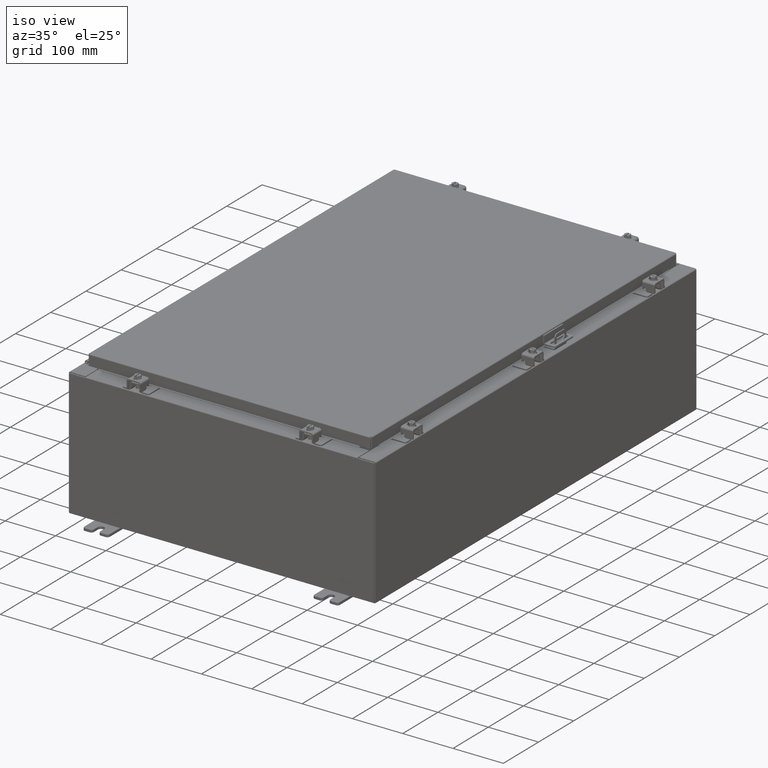
[diagram: clean part render]
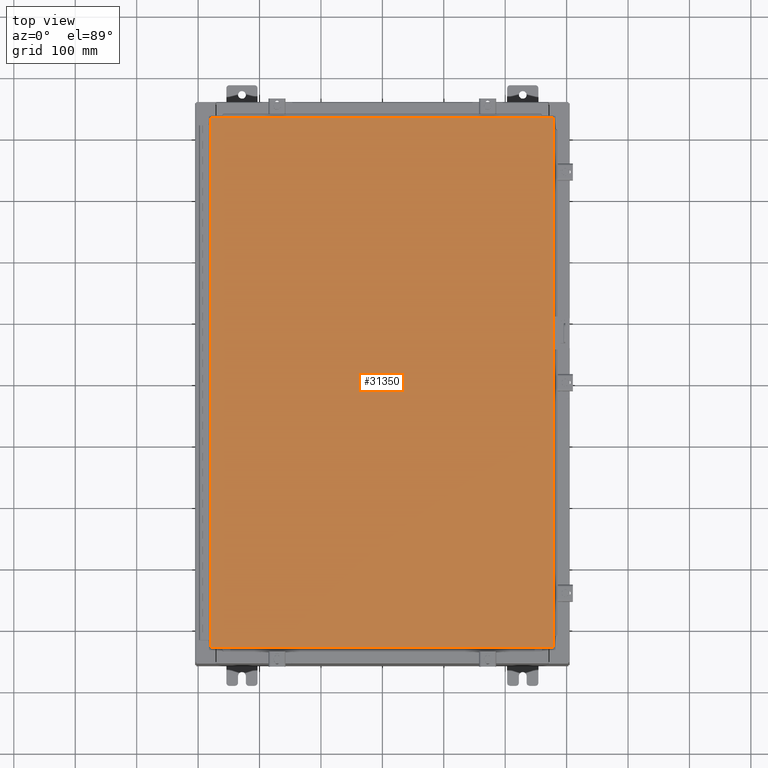
[diagram: tour spotlight — one face highlighted and labeled with its STEP entity id]
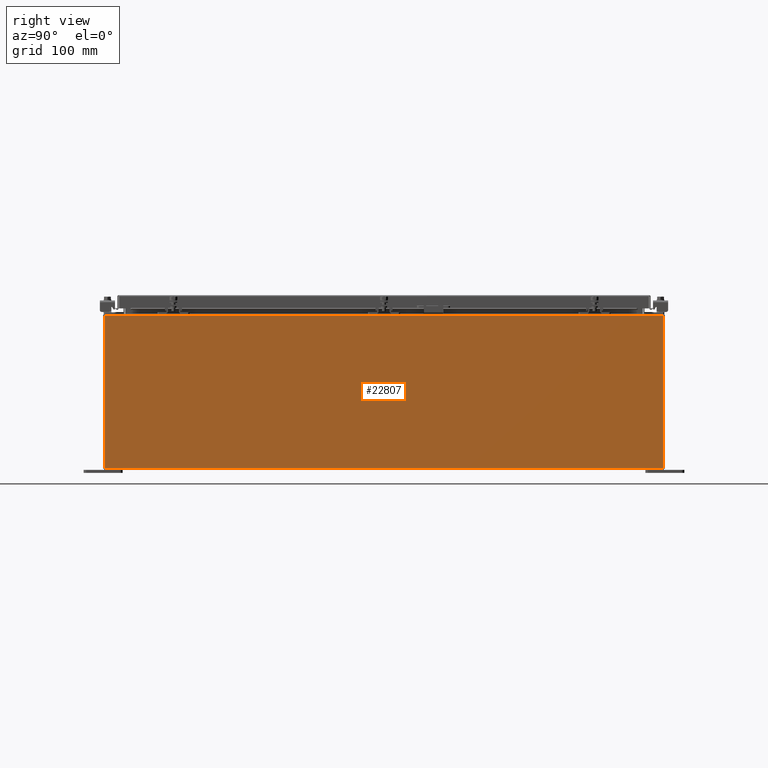
[diagram: tour spotlight — one face highlighted and labeled with its STEP entity id]
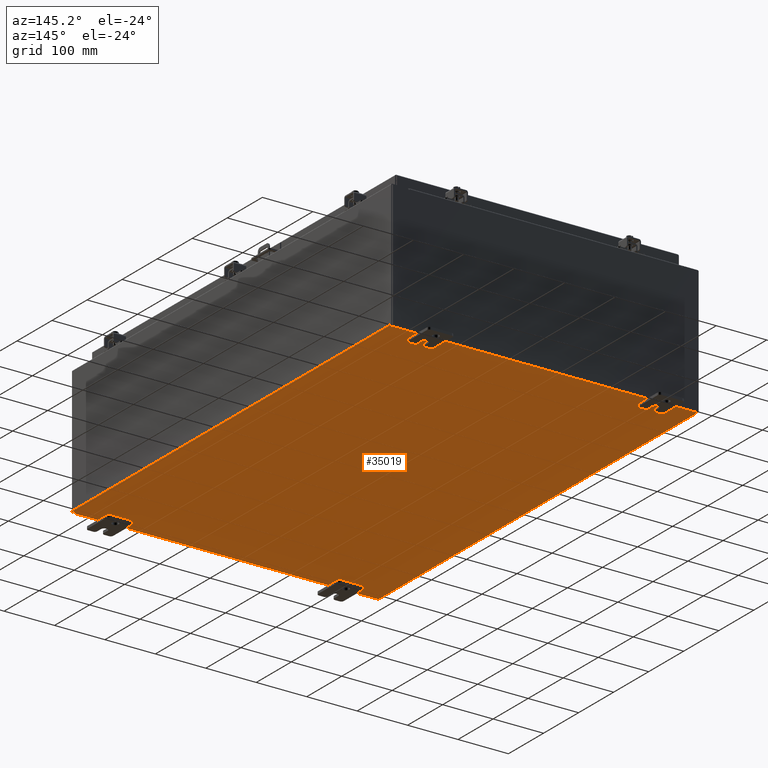
[diagram: tour spotlight — one face highlighted and labeled with its STEP entity id]
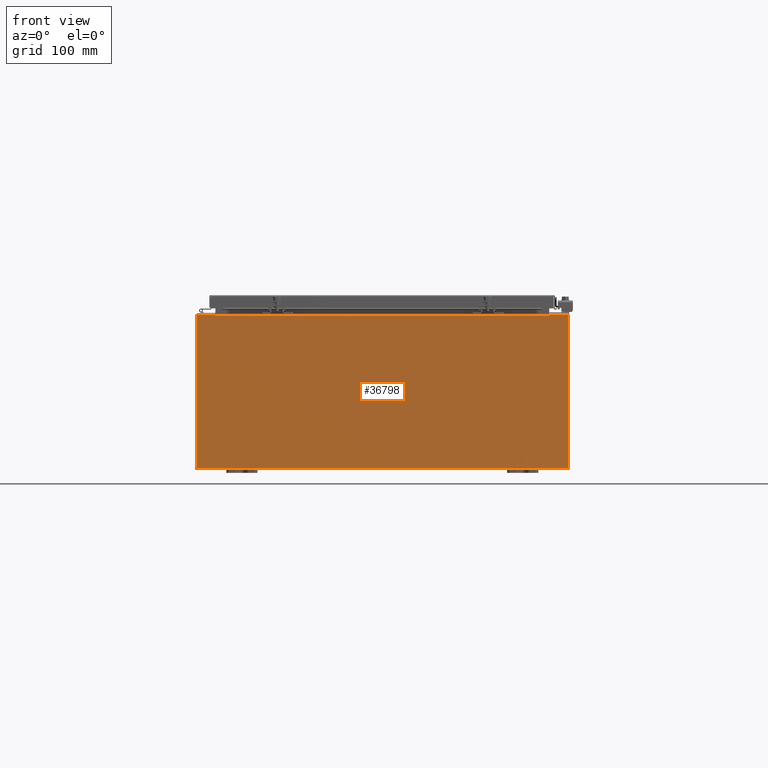
[diagram: tour spotlight — one face highlighted and labeled with its STEP entity id]
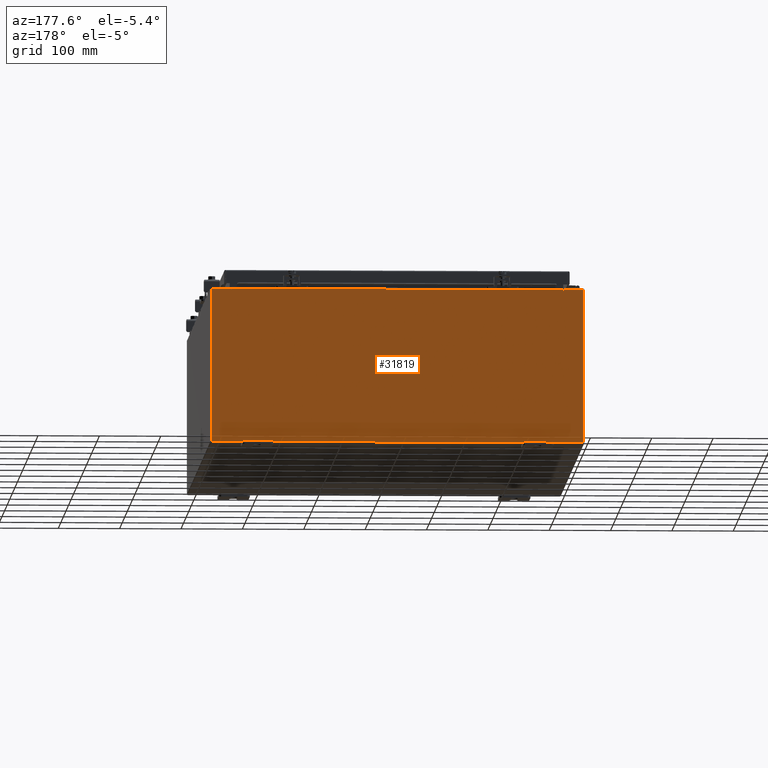
[diagram: tour spotlight — one face highlighted and labeled with its STEP entity id]
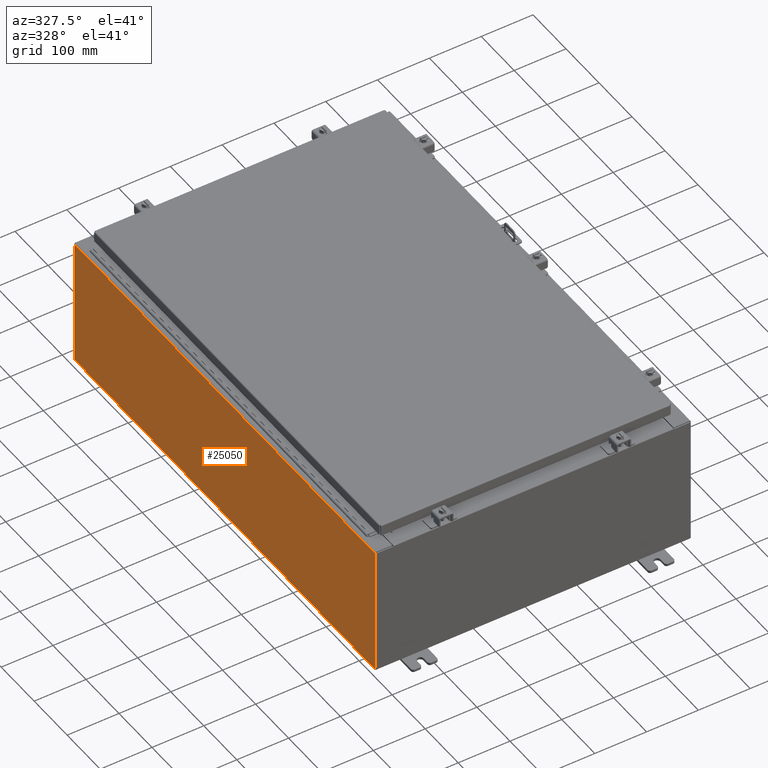
[diagram: tour spotlight — one face highlighted and labeled with its STEP entity id]
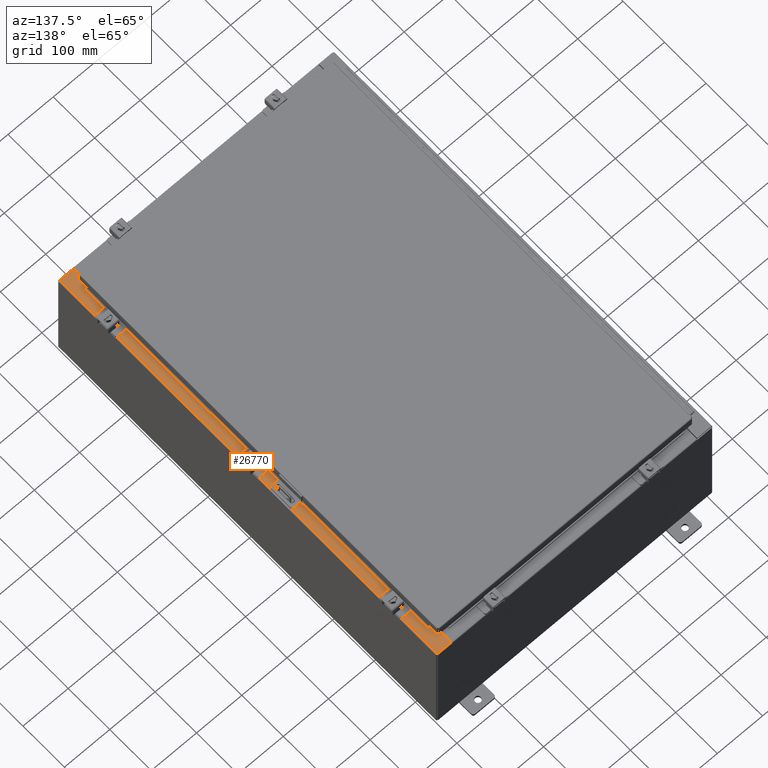
[diagram: tour spotlight — one face highlighted and labeled with its STEP entity id]
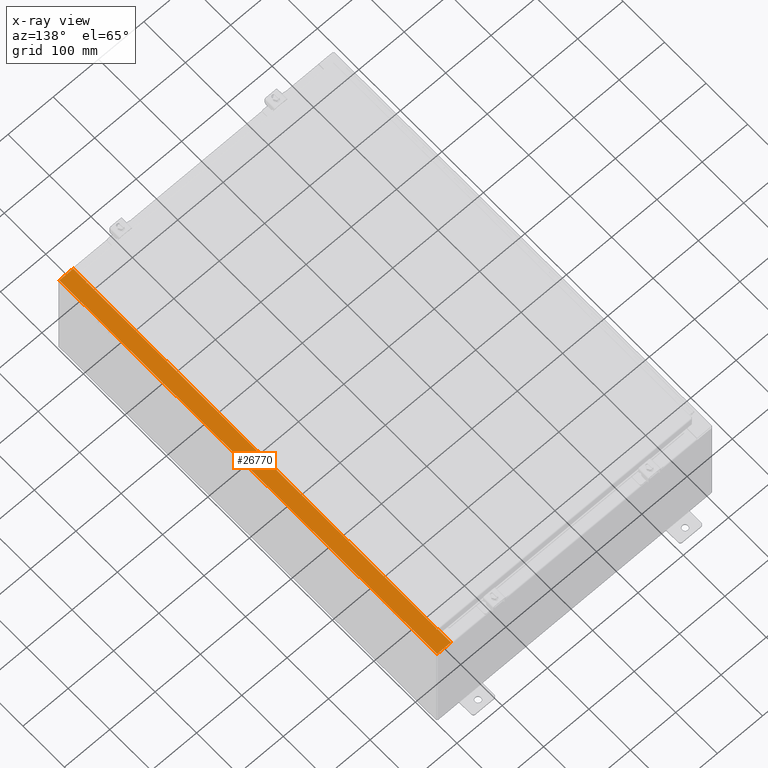
[diagram: x-ray of the same camera — body ghosted, this tour face saturated]
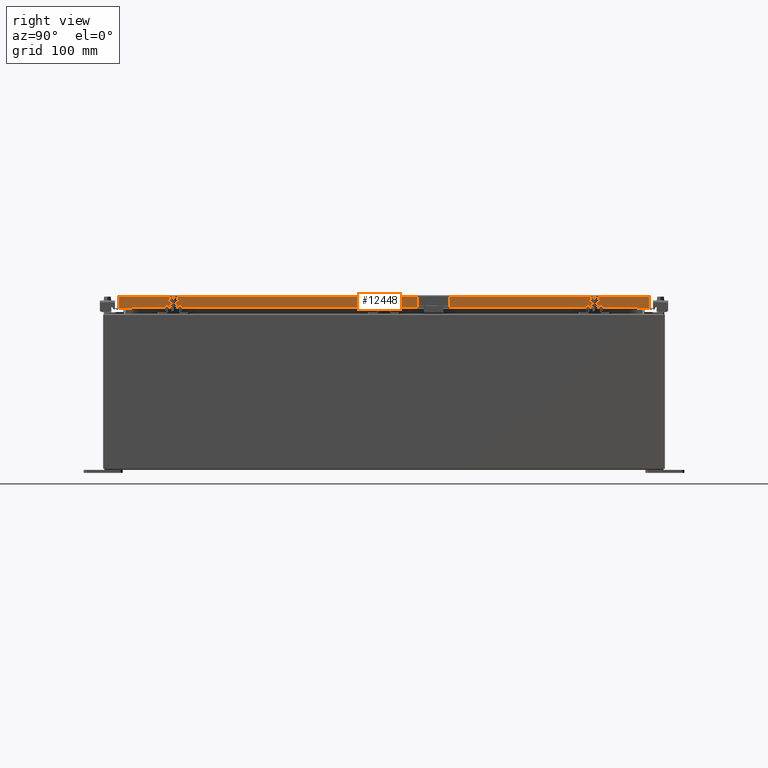
[diagram: tour spotlight — one face highlighted and labeled with its STEP entity id]
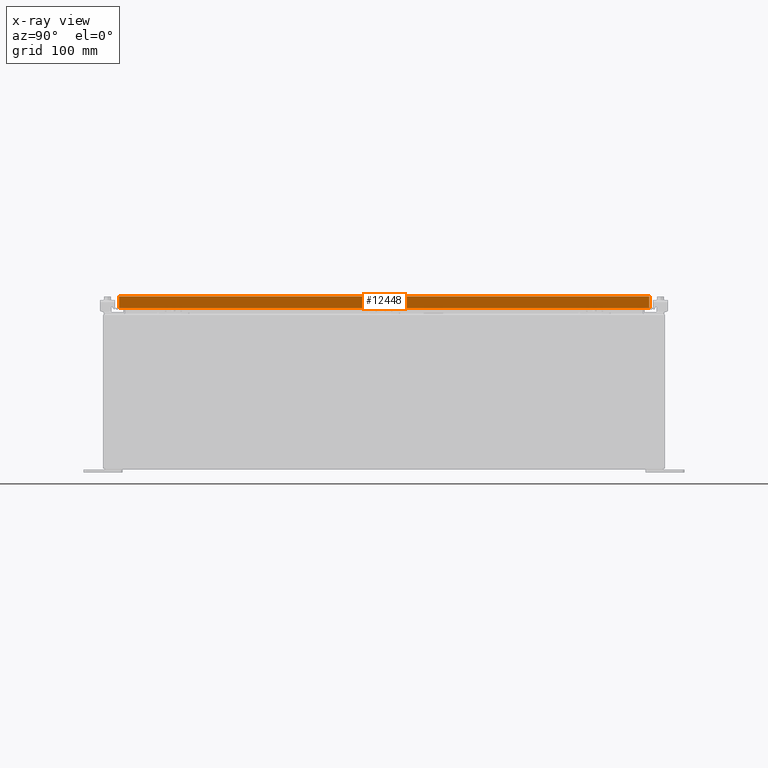
[diagram: x-ray of the same camera — body ghosted, this tour face saturated]
A machine part: a face-by-face anatomy tour. The part has 2184 B-rep faces; the first image is the clean iso view, then the 8 largest visible faces are spotlighted one at a time (largest first), each with its STEP entity span.

Face 1 — top view, entity #31350. In plain terms, the highlighted planar face has unit normal (0, 0, -1).
Definition (entity closure, byte-faithful):
#2125 = DIRECTION ( 'NONE',  ( 1.000000000000000000, -0.0000000000000000000, -0.0000000000000000000 ) ) ;
#5348 = FACE_OUTER_BOUND ( 'NONE', #9331, .T. ) ;
#7896 = VECTOR ( 'NONE', #33834, 39.37007874015748100 ) ;
#9331 = EDGE_LOOP ( 'NONE', ( #24828, #14204, #9991, #37618 ) ) ;
#9991 = ORIENTED_EDGE ( 'NONE', *, *, #40725, .T. ) ;
#10235 = EDGE_CURVE ( 'NONE', #32992, #31890, #15545, .T. ) ;
#10990 = CARTESIAN_POINT ( 'NONE',  ( 10.99029999999999600, -17.00629999999999200, -2.048885995248197400E-016 ) ) ;
#11563 = DIRECTION ( 'NONE',  ( 0.0000000000000000000, 0.0000000000000000000, -1.000000000000000000 ) ) ;
#13300 = EDGE_CURVE ( 'NONE', #32786, #31532, #32145, .T. ) ;
#14204 = ORIENTED_EDGE ( 'NONE', *, *, #10235, .T. ) ;
#14948 = CARTESIAN_POINT ( 'NONE',  ( 10.99029999999999800, 17.00630000000000700, -2.048885995248197400E-016 ) ) ;
#15157 = CARTESIAN_POINT ( 'NONE',  ( 10.99029999999999600, -17.00629999999999200, -2.048885995248197400E-016 ) ) ;
#15545 = LINE ( 'NONE', #10990, #7896 ) ;
#15807 = VECTOR ( 'NONE', #17704, 39.37007874015748100 ) ;
#16829 = VECTOR ( 'NONE', #32063, 39.37007874015748100 ) ;
#17217 = VECTOR ( 'NONE', #2125, 39.37007874015748100 ) ;
#17335 = CARTESIAN_POINT ( 'NONE',  ( -10.99030000000000500, 17.00630000000000700, -3.483106191921935600E-015 ) ) ;
#17704 = DIRECTION ( 'NONE',  ( 0.0000000000000000000, -1.000000000000000000, 0.0000000000000000000 ) ) ;
#21271 = CARTESIAN_POINT ( 'NONE',  ( 0.0000000000000000000, 0.0000000000000000000, 0.0000000000000000000 ) ) ;
#21977 = CARTESIAN_POINT ( 'NONE',  ( -10.99030000000000000, -17.00629999999999600, 8.878505979408856000E-016 ) ) ;
#24828 = ORIENTED_EDGE ( 'NONE', *, *, #41942, .T. ) ;
#25501 = LINE ( 'NONE', #38549, #16829 ) ;
#31123 = PLANE ( 'NONE',  #31891 ) ;
#31350 = ADVANCED_FACE ( 'NONE', ( #5348 ), #31123, .F. ) ;
#31532 = VERTEX_POINT ( 'NONE', #35823 ) ;
#31890 = VERTEX_POINT ( 'NONE', #14948 ) ;
#31891 = AXIS2_PLACEMENT_3D ( 'NONE', #21271, #11563, #34393 ) ;
#32063 = DIRECTION ( 'NONE',  ( -1.000000000000000000, -0.0000000000000000000, -0.0000000000000000000 ) ) ;
#32145 = LINE ( 'NONE', #37231, #15807 ) ;
#32786 = VERTEX_POINT ( 'NONE', #17335 ) ;
#32992 = VERTEX_POINT ( 'NONE', #15157 ) ;
#33576 = LINE ( 'NONE', #21977, #17217 ) ;
#33834 = DIRECTION ( 'NONE',  ( 0.0000000000000000000, 1.000000000000000000, 0.0000000000000000000 ) ) ;
#34393 = DIRECTION ( 'NONE',  ( -1.000000000000000000, 0.0000000000000000000, -0.0000000000000000000 ) ) ;
#35823 = CARTESIAN_POINT ( 'NONE',  ( -10.99030000000000000, -17.00629999999999600, 8.878505979408856000E-016 ) ) ;
#37231 = CARTESIAN_POINT ( 'NONE',  ( -10.99030000000000500, 17.00630000000000700, -3.483106191921935600E-015 ) ) ;
#37618 = ORIENTED_EDGE ( 'NONE', *, *, #13300, .T. ) ;
#38549 = CARTESIAN_POINT ( 'NONE',  ( 10.99029999999999800, 17.00630000000000700, -2.048885995248197400E-016 ) ) ;
#40725 = EDGE_CURVE ( 'NONE', #31890, #32786, #25501, .T. ) ;
#41942 = EDGE_CURVE ( 'NONE', #31532, #32992, #33576, .T. ) ;

Face 2 — right view, entity #22807. In plain terms, the highlighted planar face has unit normal (-1, 0, 0).
Definition (entity closure, byte-faithful):
#654 = LINE ( 'NONE', #41893, #33307 ) ;
#1593 = CARTESIAN_POINT ( 'NONE',  ( 12.00000000000000200, 0.0000000000000000000, -4.253780798634223500E-014 ) ) ;
#2128 = LINE ( 'NONE', #15480, #11856 ) ;
#2732 = LINE ( 'NONE', #38667, #37422 ) ;
#4439 = LINE ( 'NONE', #16037, #38050 ) ;
#4856 = DIRECTION ( 'NONE',  ( 3.523082860860887800E-015, 0.0000000000000000000, 1.000000000000000000 ) ) ;
#6528 = EDGE_CURVE ( 'NONE', #17922, #6799, #2732, .T. ) ;
#6799 = VERTEX_POINT ( 'NONE', #25943 ) ;
#7799 = EDGE_LOOP ( 'NONE', ( #9949, #12957, #21355, #32982 ) ) ;
#8478 = EDGE_CURVE ( 'NONE', #28688, #17922, #2128, .T. ) ;
#9748 = CARTESIAN_POINT ( 'NONE',  ( 12.00000000000003700, 17.92529999999999600, 9.837599999999993000 ) ) ;
#9949 = ORIENTED_EDGE ( 'NONE', *, *, #6528, .T. ) ;
#11496 = CARTESIAN_POINT ( 'NONE',  ( 12.00000000000000200, -17.92530000000000400, 0.01299999999999946500 ) ) ;
#11856 = VECTOR ( 'NONE', #15277, 39.37007874015748100 ) ;
#12957 = ORIENTED_EDGE ( 'NONE', *, *, #33149, .T. ) ;
#15277 = DIRECTION ( 'NONE',  ( 3.523082860860888200E-015, -2.201926788038055100E-016, 1.000000000000000000 ) ) ;
#15480 = CARTESIAN_POINT ( 'NONE',  ( 12.00000000000000200, 17.92529999999999600, -3.859078816098037700E-014 ) ) ;
#16037 = CARTESIAN_POINT ( 'NONE',  ( 12.00000000000000200, -17.92530000000000000, 0.01299999999999984700 ) ) ;
#17922 = VERTEX_POINT ( 'NONE', #9748 ) ;
#21138 = PLANE ( 'NONE',  #29109 ) ;
#21355 = ORIENTED_EDGE ( 'NONE', *, *, #22509, .F. ) ;
#22509 = EDGE_CURVE ( 'NONE', #28688, #25566, #4439, .T. ) ;
#22747 = DIRECTION ( 'NONE',  ( -2.147696684564447600E-031, -1.000000000000000000, -6.096072018129156600E-017 ) ) ;
#22807 = ADVANCED_FACE ( 'NONE', ( #28935 ), #21138, .F. ) ;
#24397 = DIRECTION ( 'NONE',  ( -1.000000000000000000, 0.0000000000000000000, 3.523082860860887800E-015 ) ) ;
#25566 = VERTEX_POINT ( 'NONE', #11496 ) ;
#25943 = CARTESIAN_POINT ( 'NONE',  ( 12.00000000000003600, -17.92530000000000000, 9.837600000000000100 ) ) ;
#28688 = VERTEX_POINT ( 'NONE', #35222 ) ;
#28900 = DIRECTION ( 'NONE',  ( -0.0000000000000000000, -1.000000000000000000, -0.0000000000000000000 ) ) ;
#28935 = FACE_OUTER_BOUND ( 'NONE', #7799, .T. ) ;
#29109 = AXIS2_PLACEMENT_3D ( 'NONE', #1593, #24397, #4856 ) ;
#32982 = ORIENTED_EDGE ( 'NONE', *, *, #8478, .T. ) ;
#33149 = EDGE_CURVE ( 'NONE', #6799, #25566, #654, .T. ) ;
#33307 = VECTOR ( 'NONE', #35447, 39.37007874015748100 ) ;
#35222 = CARTESIAN_POINT ( 'NONE',  ( 12.00000000000000200, 17.92529999999999600, 0.01300000000000203200 ) ) ;
#35447 = DIRECTION ( 'NONE',  ( -3.523082860860888200E-015, -2.201926788038054900E-016, -1.000000000000000000 ) ) ;
#37422 = VECTOR ( 'NONE', #28900, 39.37007874015748100 ) ;
#38050 = VECTOR ( 'NONE', #22747, 39.37007874015748100 ) ;
#38667 = CARTESIAN_POINT ( 'NONE',  ( 12.00000000000003700, 17.92529999999999600, 9.837599999999993000 ) ) ;
#41893 = CARTESIAN_POINT ( 'NONE',  ( 12.00000000000000200, -17.92530000000000400, -3.859078816098037700E-014 ) ) ;

Face 3 — auxiliary view, entity #35019. In plain terms, the highlighted planar face has unit normal (0, 0, -1).
Definition (entity closure, byte-faithful):
#1558 = EDGE_CURVE ( 'NONE', #40150, #8694, #37197, .T. ) ;
#3165 = DIRECTION ( 'NONE',  ( -1.000000000000000000, 0.0000000000000000000, -0.0000000000000000000 ) ) ;
#4150 = LINE ( 'NONE', #8594, #31197 ) ;
#4855 = EDGE_CURVE ( 'NONE', #40150, #42180, #25349, .T. ) ;
#7137 = CARTESIAN_POINT ( 'NONE',  ( -11.91230000000000000, -17.92530000000000400, -0.07469999999999994700 ) ) ;
#8594 = CARTESIAN_POINT ( 'NONE',  ( -12.00000000000000200, 17.92529999999999600, -0.07470000000000000300 ) ) ;
#8694 = VERTEX_POINT ( 'NONE', #34828 ) ;
#10432 = DIRECTION ( 'NONE',  ( 1.000000000000000000, 0.0000000000000000000, 0.0000000000000000000 ) ) ;
#12500 = EDGE_CURVE ( 'NONE', #19897, #8694, #4150, .T. ) ;
#13203 = EDGE_CURVE ( 'NONE', #19897, #42180, #28580, .T. ) ;
#14747 = ORIENTED_EDGE ( 'NONE', *, *, #13203, .T. ) ;
#14943 = DIRECTION ( 'NONE',  ( -0.0000000000000000000, 1.000000000000000000, -0.0000000000000000000 ) ) ;
#19441 = CARTESIAN_POINT ( 'NONE',  ( 0.0000000000000000000, 0.0000000000000000000, -0.07470000000000000300 ) ) ;
#19893 = VECTOR ( 'NONE', #14943, 39.37007874015748100 ) ;
#19897 = VERTEX_POINT ( 'NONE', #29110 ) ;
#19913 = VECTOR ( 'NONE', #39919, 39.37007874015748100 ) ;
#20453 = CARTESIAN_POINT ( 'NONE',  ( 11.91230000000000000, 17.92529999999999600, -0.07469999999999738000 ) ) ;
#20912 = EDGE_LOOP ( 'NONE', ( #36351, #31981, #34376, #14747 ) ) ;
#22475 = AXIS2_PLACEMENT_3D ( 'NONE', #19441, #25852, #3165 ) ;
#22731 = PLANE ( 'NONE',  #22475 ) ;
#24844 = DIRECTION ( 'NONE',  ( -1.000000000000000000, -0.0000000000000000000, -0.0000000000000000000 ) ) ;
#24849 = CARTESIAN_POINT ( 'NONE',  ( -12.00000000000000200, -17.92530000000000400, -0.07470000000000000300 ) ) ;
#25349 = LINE ( 'NONE', #24849, #36069 ) ;
#25852 = DIRECTION ( 'NONE',  ( 0.0000000000000000000, 0.0000000000000000000, -1.000000000000000000 ) ) ;
#28580 = LINE ( 'NONE', #20453, #19913 ) ;
#29110 = CARTESIAN_POINT ( 'NONE',  ( 11.91230000000000000, 17.92529999999999600, -0.07469999999999738000 ) ) ;
#30607 = FACE_OUTER_BOUND ( 'NONE', #20912, .T. ) ;
#31197 = VECTOR ( 'NONE', #24844, 39.37007874015748100 ) ;
#31981 = ORIENTED_EDGE ( 'NONE', *, *, #1558, .T. ) ;
#34376 = ORIENTED_EDGE ( 'NONE', *, *, #12500, .F. ) ;
#34828 = CARTESIAN_POINT ( 'NONE',  ( -11.91230000000000000, 17.92529999999999600, -0.07470000000000000300 ) ) ;
#35019 = ADVANCED_FACE ( 'NONE', ( #30607 ), #22731, .T. ) ;
#35479 = CARTESIAN_POINT ( 'NONE',  ( -11.91230000000000000, -17.92530000000000400, -0.07469999999999994700 ) ) ;
#36069 = VECTOR ( 'NONE', #10432, 39.37007874015748100 ) ;
#36351 = ORIENTED_EDGE ( 'NONE', *, *, #4855, .F. ) ;
#37197 = LINE ( 'NONE', #7137, #19893 ) ;
#39565 = CARTESIAN_POINT ( 'NONE',  ( 11.91229999999999100, -17.92530000000000400, -0.07470000000000000300 ) ) ;
#39919 = DIRECTION ( 'NONE',  ( -0.0000000000000000000, -1.000000000000000000, -8.208677865577646300E-017 ) ) ;
#40150 = VERTEX_POINT ( 'NONE', #35479 ) ;
#42180 = VERTEX_POINT ( 'NONE', #39565 ) ;

Face 4 — front view, entity #36798. In plain terms, the highlighted planar face has unit normal (-0, 1, -0).
Definition (entity closure, byte-faithful):
#31 = VERTEX_POINT ( 'NONE', #20897 ) ;
#241 = ORIENTED_EDGE ( 'NONE', *, *, #11708, .T. ) ;
#438 = VECTOR ( 'NONE', #1312, 39.37007874015748100 ) ;
#1312 = DIRECTION ( 'NONE',  ( 1.000000000000000000, 0.0000000000000000000, 0.0000000000000000000 ) ) ;
#2690 = VECTOR ( 'NONE', #22340, 39.37007874015748100 ) ;
#3538 = LINE ( 'NONE', #13026, #37191 ) ;
#3857 = CIRCLE ( 'NONE', #23837, 0.01867499999999949400 ) ;
#3989 = LINE ( 'NONE', #39037, #19298 ) ;
#4312 = VERTEX_POINT ( 'NONE', #11106 ) ;
#4575 = CARTESIAN_POINT ( 'NONE',  ( -11.92530000000000000, 0.0000000000000000000, 4.925300000000000000 ) ) ;
#5324 = DIRECTION ( 'NONE',  ( 0.0000000000000000000, -1.000000000000000000, 0.0000000000000000000 ) ) ;
#5406 = CARTESIAN_POINT ( 'NONE',  ( -10.65587500000000200, 0.0000000000000000000, 4.874950000000000100 ) ) ;
#5574 = ORIENTED_EDGE ( 'NONE', *, *, #17865, .F. ) ;
#5828 = CARTESIAN_POINT ( 'NONE',  ( -11.92530000000000000, 0.0000000000000000000, 4.925300000000000000 ) ) ;
#6047 = VERTEX_POINT ( 'NONE', #22291 ) ;
#6675 = DIRECTION ( 'NONE',  ( 0.0000000000000000000, 0.0000000000000000000, 1.000000000000000000 ) ) ;
#6769 = LINE ( 'NONE', #7828, #32816 ) ;
#6930 = CARTESIAN_POINT ( 'NONE',  ( -10.67455000000000200, 0.0000000000000000000, 4.874950000000000100 ) ) ;
#7097 = LINE ( 'NONE', #18591, #23425 ) ;
#7828 = CARTESIAN_POINT ( 'NONE',  ( -11.92530000000000000, 0.0000000000000000000, -4.925300000000000000 ) ) ;
#8461 = CARTESIAN_POINT ( 'NONE',  ( 0.0000000000000000000, 0.0000000000000000000, 0.0000000000000000000 ) ) ;
#8693 = DIRECTION ( 'NONE',  ( 0.0000000000000000000, 0.0000000000000000000, -1.000000000000000000 ) ) ;
#8929 = CIRCLE ( 'NONE', #31029, 0.01867499999999949400 ) ;
#9295 = VERTEX_POINT ( 'NONE', #36722 ) ;
#10354 = VECTOR ( 'NONE', #12704, 39.37007874015748100 ) ;
#10420 = ORIENTED_EDGE ( 'NONE', *, *, #35068, .T. ) ;
#11094 = DIRECTION ( 'NONE',  ( -1.000000000000000000, -0.0000000000000000000, -0.0000000000000000000 ) ) ;
#11106 = CARTESIAN_POINT ( 'NONE',  ( 10.63720000000000400, 0.0000000000000000000, 4.874950000000000100 ) ) ;
#11399 = EDGE_CURVE ( 'NONE', #4312, #28782, #36382, .T. ) ;
#11596 = CARTESIAN_POINT ( 'NONE',  ( -11.92530000000000000, 0.0000000000000000000, 4.925300000000000000 ) ) ;
#11708 = EDGE_CURVE ( 'NONE', #28384, #29901, #6769, .T. ) ;
#11781 = PLANE ( 'NONE',  #34255 ) ;
#11854 = CARTESIAN_POINT ( 'NONE',  ( -10.63720000000000400, -7.171100983368691200E-016, 4.912300000000000100 ) ) ;
#12704 = DIRECTION ( 'NONE',  ( 0.0000000000000000000, 0.0000000000000000000, 1.000000000000000000 ) ) ;
#13026 = CARTESIAN_POINT ( 'NONE',  ( -11.92530000000000000, 0.0000000000000000000, 4.925300000000000000 ) ) ;
#15048 = EDGE_CURVE ( 'NONE', #16559, #9295, #3989, .T. ) ;
#15316 = DIRECTION ( 'NONE',  ( 0.0000000000000000000, 0.0000000000000000000, -1.000000000000000000 ) ) ;
#15487 = ORIENTED_EDGE ( 'NONE', *, *, #26224, .T. ) ;
#15643 = CARTESIAN_POINT ( 'NONE',  ( 10.65587500000000200, 0.0000000000000000000, 4.874950000000000100 ) ) ;
#16039 = DIRECTION ( 'NONE',  ( -4.340572780400004900E-014, 0.0000000000000000000, -1.000000000000000000 ) ) ;
#16559 = VERTEX_POINT ( 'NONE', #11854 ) ;
#17865 = EDGE_CURVE ( 'NONE', #31, #34676, #36781, .T. ) ;
#18139 = DIRECTION ( 'NONE',  ( -0.0000000000000000000, -0.0000000000000000000, 1.000000000000000000 ) ) ;
#18168 = ORIENTED_EDGE ( 'NONE', *, *, #32157, .F. ) ;
#18591 = CARTESIAN_POINT ( 'NONE',  ( 11.92530000000000000, 0.0000000000000000000, 4.925300000000000000 ) ) ;
#18815 = VERTEX_POINT ( 'NONE', #6930 ) ;
#18937 = DIRECTION ( 'NONE',  ( 0.0000000000000000000, 0.0000000000000000000, -1.000000000000000000 ) ) ;
#19096 = VECTOR ( 'NONE', #6675, 39.37007874015748100 ) ;
#19298 = VECTOR ( 'NONE', #29306, 39.37007874015748100 ) ;
#19578 = EDGE_CURVE ( 'NONE', #31, #23697, #26459, .T. ) ;
#20081 = LINE ( 'NONE', #41780, #2690 ) ;
#20199 = ORIENTED_EDGE ( 'NONE', *, *, #32625, .T. ) ;
#20897 = CARTESIAN_POINT ( 'NONE',  ( 10.67455000000000200, 0.0000000000000000000, 4.925300000000000000 ) ) ;
#21212 = EDGE_CURVE ( 'NONE', #9295, #18815, #3857, .T. ) ;
#21295 = VERTEX_POINT ( 'NONE', #5828 ) ;
#22291 = CARTESIAN_POINT ( 'NONE',  ( -10.67455000000000200, 0.0000000000000000000, 4.925300000000000000 ) ) ;
#22340 = DIRECTION ( 'NONE',  ( 1.000000000000000000, 0.0000000000000000000, 0.0000000000000000000 ) ) ;
#23403 = CARTESIAN_POINT ( 'NONE',  ( -11.92530000000000000, 0.0000000000000000000, -4.925300000000000000 ) ) ;
#23425 = VECTOR ( 'NONE', #15316, 39.37007874015748100 ) ;
#23648 = EDGE_CURVE ( 'NONE', #34676, #4312, #8929, .T. ) ;
#23697 = VERTEX_POINT ( 'NONE', #25640 ) ;
#23837 = AXIS2_PLACEMENT_3D ( 'NONE', #5406, #28261, #8693 ) ;
#25201 = ORIENTED_EDGE ( 'NONE', *, *, #19578, .T. ) ;
#25574 = LINE ( 'NONE', #11596, #40346 ) ;
#25640 = CARTESIAN_POINT ( 'NONE',  ( 11.92530000000000000, 0.0000000000000000000, 4.925300000000000000 ) ) ;
#26224 = EDGE_CURVE ( 'NONE', #29901, #21295, #25574, .T. ) ;
#26459 = LINE ( 'NONE', #4575, #438 ) ;
#27473 = CARTESIAN_POINT ( 'NONE',  ( 10.67455000000000200, 0.0000000000000000000, 4.874950000000000100 ) ) ;
#27782 = LINE ( 'NONE', #39115, #19096 ) ;
#28126 = VECTOR ( 'NONE', #16039, 39.37007874015748100 ) ;
#28174 = DIRECTION ( 'NONE',  ( 0.0000000000000000000, -0.0000000000000000000, -1.000000000000000000 ) ) ;
#28261 = DIRECTION ( 'NONE',  ( -0.0000000000000000000, 1.000000000000000000, -0.0000000000000000000 ) ) ;
#28384 = VERTEX_POINT ( 'NONE', #30255 ) ;
#28782 = VERTEX_POINT ( 'NONE', #41955 ) ;
#29023 = CARTESIAN_POINT ( 'NONE',  ( 10.67454999999979000, -0.0000000000000000000, -4.633366117301795800E-013 ) ) ;
#29306 = DIRECTION ( 'NONE',  ( 0.0000000000000000000, 0.0000000000000000000, -1.000000000000000000 ) ) ;
#29901 = VERTEX_POINT ( 'NONE', #23403 ) ;
#30255 = CARTESIAN_POINT ( 'NONE',  ( 11.92530000000000000, 0.0000000000000000000, -4.925300000000000000 ) ) ;
#31029 = AXIS2_PLACEMENT_3D ( 'NONE', #15643, #38407, #18937 ) ;
#32157 = EDGE_CURVE ( 'NONE', #18815, #6047, #27782, .T. ) ;
#32405 = ORIENTED_EDGE ( 'NONE', *, *, #23648, .F. ) ;
#32625 = EDGE_CURVE ( 'NONE', #16559, #28782, #20081, .T. ) ;
#32816 = VECTOR ( 'NONE', #11094, 39.37007874015748100 ) ;
#34255 = AXIS2_PLACEMENT_3D ( 'NONE', #8461, #5324, #28174 ) ;
#34676 = VERTEX_POINT ( 'NONE', #27473 ) ;
#34970 = ORIENTED_EDGE ( 'NONE', *, *, #41247, .T. ) ;
#35068 = EDGE_CURVE ( 'NONE', #21295, #6047, #3538, .T. ) ;
#35977 = DIRECTION ( 'NONE',  ( 1.000000000000000000, 0.0000000000000000000, 0.0000000000000000000 ) ) ;
#36382 = LINE ( 'NONE', #38731, #10354 ) ;
#36722 = CARTESIAN_POINT ( 'NONE',  ( -10.63720000000000400, -0.0000000000000000000, 4.874950000000000100 ) ) ;
#36781 = LINE ( 'NONE', #29023, #28126 ) ;
#36798 = ADVANCED_FACE ( 'NONE', ( #38972 ), #11781, .F. ) ;
#37191 = VECTOR ( 'NONE', #35977, 39.37007874015748100 ) ;
#37493 = ORIENTED_EDGE ( 'NONE', *, *, #11399, .F. ) ;
#38407 = DIRECTION ( 'NONE',  ( -0.0000000000000000000, 1.000000000000000000, -0.0000000000000000000 ) ) ;
#38731 = CARTESIAN_POINT ( 'NONE',  ( 10.63720000000000400, 0.0000000000000000000, 0.0000000000000000000 ) ) ;
#38972 = FACE_OUTER_BOUND ( 'NONE', #39467, .T. ) ;
#39037 = CARTESIAN_POINT ( 'NONE',  ( -10.63720000000000400, -0.0000000000000000000, 0.0000000000000000000 ) ) ;
#39115 = CARTESIAN_POINT ( 'NONE',  ( -10.67455000000000200, -0.0000000000000000000, 0.0000000000000000000 ) ) ;
#39467 = EDGE_LOOP ( 'NONE', ( #18168, #42071, #41518, #20199, #37493, #32405, #5574, #25201, #34970, #241, #15487, #10420 ) ) ;
#40346 = VECTOR ( 'NONE', #18139, 39.37007874015748100 ) ;
#41247 = EDGE_CURVE ( 'NONE', #23697, #28384, #7097, .T. ) ;
#41518 = ORIENTED_EDGE ( 'NONE', *, *, #15048, .F. ) ;
#41780 = CARTESIAN_POINT ( 'NONE',  ( -10.63720000000000400, -7.171100983368691200E-016, 4.912300000000000100 ) ) ;
#41955 = CARTESIAN_POINT ( 'NONE',  ( 10.63720000000000400, 0.0000000000000000000, 4.912300000000000100 ) ) ;
#42071 = ORIENTED_EDGE ( 'NONE', *, *, #21212, .F. ) ;

Face 5 — auxiliary view, entity #31819. In plain terms, the highlighted planar face has unit normal (0, -1, 0).
Definition (entity closure, byte-faithful):
#239 = LINE ( 'NONE', #2886, #25190 ) ;
#920 = ORIENTED_EDGE ( 'NONE', *, *, #4329, .F. ) ;
#1036 = VERTEX_POINT ( 'NONE', #19336 ) ;
#1319 = DIRECTION ( 'NONE',  ( -0.0000000000000000000, 1.000000000000000000, -0.0000000000000000000 ) ) ;
#1919 = ORIENTED_EDGE ( 'NONE', *, *, #12192, .F. ) ;
#2886 = CARTESIAN_POINT ( 'NONE',  ( 10.63720000000000400, 0.0000000000000000000, 0.0000000000000000000 ) ) ;
#2945 = ORIENTED_EDGE ( 'NONE', *, *, #10703, .F. ) ;
#3102 = LINE ( 'NONE', #29497, #36786 ) ;
#3220 = CARTESIAN_POINT ( 'NONE',  ( -11.92530000000000000, 0.0000000000000000000, 4.925300000000000000 ) ) ;
#3657 = CARTESIAN_POINT ( 'NONE',  ( -11.92530000000000000, 0.0000000000000000000, 4.925300000000000000 ) ) ;
#4329 = EDGE_CURVE ( 'NONE', #1036, #17253, #22864, .T. ) ;
#4432 = CARTESIAN_POINT ( 'NONE',  ( 10.63720000000000400, 0.0000000000000000000, 4.912300000000000100 ) ) ;
#4740 = DIRECTION ( 'NONE',  ( 1.000000000000000000, 0.0000000000000000000, 0.0000000000000000000 ) ) ;
#5374 = DIRECTION ( 'NONE',  ( 0.0000000000000000000, 0.0000000000000000000, -1.000000000000000000 ) ) ;
#5548 = ORIENTED_EDGE ( 'NONE', *, *, #26133, .T. ) ;
#5613 = AXIS2_PLACEMENT_3D ( 'NONE', #20842, #1319, #24117 ) ;
#5767 = EDGE_CURVE ( 'NONE', #22012, #40286, #35994, .T. ) ;
#6191 = DIRECTION ( 'NONE',  ( 0.0000000000000000000, 0.0000000000000000000, 1.000000000000000000 ) ) ;
#6210 = ORIENTED_EDGE ( 'NONE', *, *, #16113, .F. ) ;
#6793 = CARTESIAN_POINT ( 'NONE',  ( -10.67455000000000200, 0.0000000000000000000, 4.925300000000000000 ) ) ;
#6955 = LINE ( 'NONE', #3657, #39542 ) ;
#7969 = DIRECTION ( 'NONE',  ( 0.0000000000000000000, -0.0000000000000000000, -1.000000000000000000 ) ) ;
#8414 = CIRCLE ( 'NONE', #5613, 0.01867499999999949400 ) ;
#9005 = LINE ( 'NONE', #16807, #35081 ) ;
#9346 = EDGE_CURVE ( 'NONE', #36141, #22012, #6955, .T. ) ;
#9954 = VECTOR ( 'NONE', #16750, 39.37007874015748100 ) ;
#10343 = DIRECTION ( 'NONE',  ( 0.0000000000000000000, 0.0000000000000000000, 1.000000000000000000 ) ) ;
#10615 = CARTESIAN_POINT ( 'NONE',  ( -11.92530000000000000, 0.0000000000000000000, 4.925300000000000000 ) ) ;
#10703 = EDGE_CURVE ( 'NONE', #30753, #1036, #25202, .T. ) ;
#11027 = CARTESIAN_POINT ( 'NONE',  ( 11.92530000000000000, 0.0000000000000000000, -4.925300000000000000 ) ) ;
#12192 = EDGE_CURVE ( 'NONE', #35516, #40286, #32774, .T. ) ;
#12223 = DIRECTION ( 'NONE',  ( 0.0000000000000000000, 0.0000000000000000000, -1.000000000000000000 ) ) ;
#12914 = ORIENTED_EDGE ( 'NONE', *, *, #20030, .F. ) ;
#13254 = CARTESIAN_POINT ( 'NONE',  ( 10.67454999999979000, -0.0000000000000000000, -4.633366117301795800E-013 ) ) ;
#13591 = AXIS2_PLACEMENT_3D ( 'NONE', #21648, #20532, #5374 ) ;
#14392 = CARTESIAN_POINT ( 'NONE',  ( 0.0000000000000000000, 0.0000000000000000000, 0.0000000000000000000 ) ) ;
#14785 = ORIENTED_EDGE ( 'NONE', *, *, #5767, .T. ) ;
#15418 = CARTESIAN_POINT ( 'NONE',  ( -10.63720000000000400, -0.0000000000000000000, 4.874950000000000100 ) ) ;
#16113 = EDGE_CURVE ( 'NONE', #17253, #19559, #239, .T. ) ;
#16750 = DIRECTION ( 'NONE',  ( 1.000000000000000000, 0.0000000000000000000, 0.0000000000000000000 ) ) ;
#16807 = CARTESIAN_POINT ( 'NONE',  ( -10.63720000000000400, -0.0000000000000000000, 0.0000000000000000000 ) ) ;
#17253 = VERTEX_POINT ( 'NONE', #25188 ) ;
#17540 = VECTOR ( 'NONE', #36059, 39.37007874015748100 ) ;
#17904 = VECTOR ( 'NONE', #4740, 39.37007874015748100 ) ;
#18026 = CARTESIAN_POINT ( 'NONE',  ( -11.92530000000000000, 0.0000000000000000000, -4.925300000000000000 ) ) ;
#18162 = VECTOR ( 'NONE', #40751, 39.37007874015748100 ) ;
#19336 = CARTESIAN_POINT ( 'NONE',  ( 10.67455000000000200, 0.0000000000000000000, 4.874950000000000100 ) ) ;
#19559 = VERTEX_POINT ( 'NONE', #4432 ) ;
#20030 = EDGE_CURVE ( 'NONE', #25950, #35636, #9005, .T. ) ;
#20183 = CARTESIAN_POINT ( 'NONE',  ( -10.63720000000000400, -7.171100983368691200E-016, 4.912300000000000100 ) ) ;
#20428 = ORIENTED_EDGE ( 'NONE', *, *, #27080, .T. ) ;
#20532 = DIRECTION ( 'NONE',  ( -0.0000000000000000000, 1.000000000000000000, -0.0000000000000000000 ) ) ;
#20842 = CARTESIAN_POINT ( 'NONE',  ( -10.65587500000000200, 0.0000000000000000000, 4.874950000000000100 ) ) ;
#21511 = AXIS2_PLACEMENT_3D ( 'NONE', #14392, #27556, #7969 ) ;
#21648 = CARTESIAN_POINT ( 'NONE',  ( 10.65587500000000200, 0.0000000000000000000, 4.874950000000000100 ) ) ;
#22012 = VERTEX_POINT ( 'NONE', #3220 ) ;
#22330 = ORIENTED_EDGE ( 'NONE', *, *, #25690, .T. ) ;
#22864 = CIRCLE ( 'NONE', #13591, 0.01867499999999949400 ) ;
#22926 = VERTEX_POINT ( 'NONE', #38020 ) ;
#24117 = DIRECTION ( 'NONE',  ( 0.0000000000000000000, 0.0000000000000000000, -1.000000000000000000 ) ) ;
#24221 = PLANE ( 'NONE',  #21511 ) ;
#24340 = VERTEX_POINT ( 'NONE', #11027 ) ;
#24593 = CARTESIAN_POINT ( 'NONE',  ( 10.67455000000000200, 0.0000000000000000000, 4.925300000000000000 ) ) ;
#24716 = FACE_OUTER_BOUND ( 'NONE', #35852, .T. ) ;
#25188 = CARTESIAN_POINT ( 'NONE',  ( 10.63720000000000400, 0.0000000000000000000, 4.874950000000000100 ) ) ;
#25190 = VECTOR ( 'NONE', #6191, 39.37007874015748100 ) ;
#25202 = LINE ( 'NONE', #13254, #17540 ) ;
#25690 = EDGE_CURVE ( 'NONE', #22926, #24340, #36336, .T. ) ;
#25950 = VERTEX_POINT ( 'NONE', #20183 ) ;
#26133 = EDGE_CURVE ( 'NONE', #30753, #22926, #26611, .T. ) ;
#26599 = ORIENTED_EDGE ( 'NONE', *, *, #30730, .T. ) ;
#26611 = LINE ( 'NONE', #40460, #17904 ) ;
#26870 = LINE ( 'NONE', #18026, #18162 ) ;
#27080 = EDGE_CURVE ( 'NONE', #25950, #19559, #3102, .T. ) ;
#27337 = ORIENTED_EDGE ( 'NONE', *, *, #31253, .F. ) ;
#27556 = DIRECTION ( 'NONE',  ( 0.0000000000000000000, -1.000000000000000000, 0.0000000000000000000 ) ) ;
#28477 = CARTESIAN_POINT ( 'NONE',  ( 11.92530000000000000, 0.0000000000000000000, 4.925300000000000000 ) ) ;
#29497 = CARTESIAN_POINT ( 'NONE',  ( -10.63720000000000400, -7.171100983368691200E-016, 4.912300000000000100 ) ) ;
#30052 = CARTESIAN_POINT ( 'NONE',  ( -10.67455000000000200, -0.0000000000000000000, 0.0000000000000000000 ) ) ;
#30730 = EDGE_CURVE ( 'NONE', #24340, #36141, #26870, .T. ) ;
#30753 = VERTEX_POINT ( 'NONE', #24593 ) ;
#31023 = DIRECTION ( 'NONE',  ( -0.0000000000000000000, -0.0000000000000000000, 1.000000000000000000 ) ) ;
#31253 = EDGE_CURVE ( 'NONE', #35636, #35516, #8414, .T. ) ;
#31732 = VECTOR ( 'NONE', #10343, 39.37007874015748100 ) ;
#31819 = ADVANCED_FACE ( 'NONE', ( #24716 ), #24221, .F. ) ;
#32774 = LINE ( 'NONE', #30052, #31732 ) ;
#32781 = DIRECTION ( 'NONE',  ( 1.000000000000000000, 0.0000000000000000000, 0.0000000000000000000 ) ) ;
#35081 = VECTOR ( 'NONE', #36347, 39.37007874015748100 ) ;
#35328 = VECTOR ( 'NONE', #12223, 39.37007874015748100 ) ;
#35516 = VERTEX_POINT ( 'NONE', #40709 ) ;
#35636 = VERTEX_POINT ( 'NONE', #15418 ) ;
#35852 = EDGE_LOOP ( 'NONE', ( #1919, #27337, #12914, #20428, #6210, #920, #2945, #5548, #22330, #26599, #38103, #14785 ) ) ;
#35994 = LINE ( 'NONE', #10615, #9954 ) ;
#36059 = DIRECTION ( 'NONE',  ( -4.340572780400004900E-014, 0.0000000000000000000, -1.000000000000000000 ) ) ;
#36141 = VERTEX_POINT ( 'NONE', #37576 ) ;
#36336 = LINE ( 'NONE', #28477, #35328 ) ;
#36347 = DIRECTION ( 'NONE',  ( 0.0000000000000000000, 0.0000000000000000000, -1.000000000000000000 ) ) ;
#36786 = VECTOR ( 'NONE', #32781, 39.37007874015748100 ) ;
#37576 = CARTESIAN_POINT ( 'NONE',  ( -11.92530000000000000, 0.0000000000000000000, -4.925300000000000000 ) ) ;
#38020 = CARTESIAN_POINT ( 'NONE',  ( 11.92530000000000000, 0.0000000000000000000, 4.925300000000000000 ) ) ;
#38103 = ORIENTED_EDGE ( 'NONE', *, *, #9346, .T. ) ;
#39542 = VECTOR ( 'NONE', #31023, 39.37007874015748100 ) ;
#40286 = VERTEX_POINT ( 'NONE', #6793 ) ;
#40460 = CARTESIAN_POINT ( 'NONE',  ( -11.92530000000000000, 0.0000000000000000000, 4.925300000000000000 ) ) ;
#40709 = CARTESIAN_POINT ( 'NONE',  ( -10.67455000000000200, 0.0000000000000000000, 4.874950000000000100 ) ) ;
#40751 = DIRECTION ( 'NONE',  ( -1.000000000000000000, -0.0000000000000000000, -0.0000000000000000000 ) ) ;

Face 6 — auxiliary view, entity #25050. In plain terms, the highlighted planar face has unit normal (1, 0, 0).
Definition (entity closure, byte-faithful):
#267 = ORIENTED_EDGE ( 'NONE', *, *, #270, .T. ) ;
#270 = EDGE_CURVE ( 'NONE', #37281, #21741, #12843, .T. ) ;
#453 = EDGE_LOOP ( 'NONE', ( #25226, #267, #15440, #15717 ) ) ;
#3652 = DIRECTION ( 'NONE',  ( -0.0000000000000000000, 1.000000000000000000, -0.0000000000000000000 ) ) ;
#4039 = VECTOR ( 'NONE', #42024, 39.37007874015748100 ) ;
#4163 = VECTOR ( 'NONE', #10916, 39.37007874015748100 ) ;
#7734 = LINE ( 'NONE', #23208, #17428 ) ;
#9029 = DIRECTION ( 'NONE',  ( 0.0000000000000000000, 1.000000000000000000, 0.0000000000000000000 ) ) ;
#10916 = DIRECTION ( 'NONE',  ( 3.523082860860888200E-015, 0.0000000000000000000, -1.000000000000000000 ) ) ;
#11645 = CARTESIAN_POINT ( 'NONE',  ( -12.00000000000003600, -17.92530000000000400, 9.837599999999998300 ) ) ;
#11970 = CARTESIAN_POINT ( 'NONE',  ( -12.00000000000000200, 0.0000000000000000000, -4.253780798634223500E-014 ) ) ;
#12134 = EDGE_CURVE ( 'NONE', #16096, #21741, #7734, .T. ) ;
#12843 = LINE ( 'NONE', #30203, #4163 ) ;
#14027 = LINE ( 'NONE', #28622, #22724 ) ;
#15238 = DIRECTION ( 'NONE',  ( 3.523082860860887800E-015, 0.0000000000000000000, -1.000000000000000000 ) ) ;
#15440 = ORIENTED_EDGE ( 'NONE', *, *, #12134, .F. ) ;
#15717 = ORIENTED_EDGE ( 'NONE', *, *, #35321, .T. ) ;
#16096 = VERTEX_POINT ( 'NONE', #32163 ) ;
#17428 = VECTOR ( 'NONE', #3652, 39.37007874015748100 ) ;
#18590 = VERTEX_POINT ( 'NONE', #11645 ) ;
#21741 = VERTEX_POINT ( 'NONE', #31069 ) ;
#22724 = VECTOR ( 'NONE', #9029, 39.37007874015748100 ) ;
#23208 = CARTESIAN_POINT ( 'NONE',  ( -12.00000000000000200, 17.92529999999999600, 0.01299999999999984700 ) ) ;
#23928 = EDGE_CURVE ( 'NONE', #18590, #37281, #14027, .T. ) ;
#24756 = AXIS2_PLACEMENT_3D ( 'NONE', #11970, #34787, #15238 ) ;
#25050 = ADVANCED_FACE ( 'NONE', ( #40377 ), #28239, .F. ) ;
#25226 = ORIENTED_EDGE ( 'NONE', *, *, #23928, .T. ) ;
#28239 = PLANE ( 'NONE',  #24756 ) ;
#28622 = CARTESIAN_POINT ( 'NONE',  ( -12.00000000000003600, -17.92530000000000400, 9.837599999999998300 ) ) ;
#30203 = CARTESIAN_POINT ( 'NONE',  ( -12.00000000000000200, 17.92529999999999600, -4.253780798634223500E-014 ) ) ;
#31069 = CARTESIAN_POINT ( 'NONE',  ( -12.00000000000000200, 17.92529999999999600, 0.01299999999999984300 ) ) ;
#32163 = CARTESIAN_POINT ( 'NONE',  ( -12.00000000000000200, -17.92530000000000400, 0.01299999999999984700 ) ) ;
#33847 = CARTESIAN_POINT ( 'NONE',  ( -12.00000000000003600, 17.92529999999999600, 9.837599999999998300 ) ) ;
#34787 = DIRECTION ( 'NONE',  ( 1.000000000000000000, 0.0000000000000000000, 3.523082860860887800E-015 ) ) ;
#35321 = EDGE_CURVE ( 'NONE', #16096, #18590, #37650, .T. ) ;
#37281 = VERTEX_POINT ( 'NONE', #33847 ) ;
#37650 = LINE ( 'NONE', #38915, #4039 ) ;
#38915 = CARTESIAN_POINT ( 'NONE',  ( -12.00000000000000200, -17.92530000000000400, -4.253780798634223500E-014 ) ) ;
#40377 = FACE_OUTER_BOUND ( 'NONE', #453, .T. ) ;
#42024 = DIRECTION ( 'NONE',  ( -3.523082860860888200E-015, 0.0000000000000000000, 1.000000000000000000 ) ) ;

Face 7 — auxiliary view, entity #26770. An x-ray twin of the same camera follows (body ghosted, this face saturated) — the face is partly hidden behind the body. In plain terms, the highlighted planar face has unit normal (-0, -0, -1).
Definition (entity closure, byte-faithful):
#435 = CARTESIAN_POINT ( 'NONE',  ( 10.75005000000003400, -16.59374999999999600, 9.925300000000016000 ) ) ;
#2229 = CARTESIAN_POINT ( 'NONE',  ( 10.69970000000003700, -16.63109999999999600, 9.925300000000010700 ) ) ;
#3044 = VERTEX_POINT ( 'NONE', #25476 ) ;
#3395 = DIRECTION ( 'NONE',  ( -0.0000000000000000000, 1.000000000000000000, -0.0000000000000000000 ) ) ;
#4735 = ORIENTED_EDGE ( 'NONE', *, *, #10749, .F. ) ;
#5095 = VECTOR ( 'NONE', #3395, 39.37007874015748100 ) ;
#5330 = EDGE_CURVE ( 'NONE', #17057, #14394, #25302, .T. ) ;
#6746 = VECTOR ( 'NONE', #35688, 39.37007874015748100 ) ;
#7949 = VECTOR ( 'NONE', #37933, 39.37007874015748100 ) ;
#8012 = VERTEX_POINT ( 'NONE', #37024 ) ;
#8366 = DIRECTION ( 'NONE',  ( -5.349571789159788500E-015, -6.096072018129155300E-017, -1.000000000000000000 ) ) ;
#8486 = AXIS2_PLACEMENT_3D ( 'NONE', #21363, #8366, #31214 ) ;
#8554 = EDGE_CURVE ( 'NONE', #3044, #26876, #15408, .T. ) ;
#9477 = VECTOR ( 'NONE', #28371, 39.37007874015748100 ) ;
#9953 = CARTESIAN_POINT ( 'NONE',  ( 10.71270000000003500, -16.59375000000000000, 9.925300000000016000 ) ) ;
#10749 = EDGE_CURVE ( 'NONE', #33584, #29548, #40418, .T. ) ;
#11093 = CARTESIAN_POINT ( 'NONE',  ( 10.71270000000003500, 16.59374999999999600, 9.925300000000016000 ) ) ;
#11671 = ORIENTED_EDGE ( 'NONE', *, *, #39680, .F. ) ;
#11849 = ORIENTED_EDGE ( 'NONE', *, *, #23065, .F. ) ;
#11895 = AXIS2_PLACEMENT_3D ( 'NONE', #18047, #40773, #21344 ) ;
#12053 = LINE ( 'NONE', #28969, #28401 ) ;
#12235 = CARTESIAN_POINT ( 'NONE',  ( 10.69970000000003700, 16.63109999999999600, 9.925300000000008900 ) ) ;
#12482 = CARTESIAN_POINT ( 'NONE',  ( 11.91230000000003700, 17.92529999999999600, 9.925300000000001800 ) ) ;
#14062 = DIRECTION ( 'NONE',  ( -6.096072018129156600E-017, -1.000000000000000000, 6.096072018129187400E-017 ) ) ;
#14394 = VERTEX_POINT ( 'NONE', #16499 ) ;
#14616 = AXIS2_PLACEMENT_3D ( 'NONE', #19112, #41833, #22396 ) ;
#14694 = CARTESIAN_POINT ( 'NONE',  ( 10.69970000000003700, -17.92530000000000000, 9.925300000000010700 ) ) ;
#15408 = LINE ( 'NONE', #35960, #6746 ) ;
#16005 = CIRCLE ( 'NONE', #11895, 0.01867499999999949400 ) ;
#16499 = CARTESIAN_POINT ( 'NONE',  ( 10.75005000000003400, 16.59374999999999600, 9.925300000000007100 ) ) ;
#16949 = DIRECTION ( 'NONE',  ( 0.0000000000000000000, -1.000000000000000000, 6.096072018129155300E-017 ) ) ;
#17057 = VERTEX_POINT ( 'NONE', #11093 ) ;
#18047 = CARTESIAN_POINT ( 'NONE',  ( 10.75005000000003400, -16.61242499999999800, 9.925300000000016000 ) ) ;
#18254 = CARTESIAN_POINT ( 'NONE',  ( 10.75005000000003400, -16.59374999999999600, 9.925300000000008900 ) ) ;
#18272 = EDGE_CURVE ( 'NONE', #29548, #17057, #31153, .T. ) ;
#19112 = CARTESIAN_POINT ( 'NONE',  ( 10.75005000000003400, 16.61242499999999500, 9.925300000000016000 ) ) ;
#19275 = EDGE_CURVE ( 'NONE', #30946, #3044, #20345, .T. ) ;
#19305 = CARTESIAN_POINT ( 'NONE',  ( 5.335691853495957800E-014, 17.92529999999999600, 9.925300000000065700 ) ) ;
#20105 = ORIENTED_EDGE ( 'NONE', *, *, #5330, .F. ) ;
#20345 = LINE ( 'NONE', #19305, #37627 ) ;
#20556 = ORIENTED_EDGE ( 'NONE', *, *, #40995, .F. ) ;
#21120 = VERTEX_POINT ( 'NONE', #14694 ) ;
#21344 = DIRECTION ( 'NONE',  ( 1.000000000000000000, 0.0000000000000000000, 0.0000000000000000000 ) ) ;
#21363 = CARTESIAN_POINT ( 'NONE',  ( 5.335691853495958500E-014, 6.050534360153771000E-016, 9.925300000000065700 ) ) ;
#21539 = EDGE_CURVE ( 'NONE', #37671, #21120, #25834, .T. ) ;
#22178 = VECTOR ( 'NONE', #36143, 39.37007874015748100 ) ;
#22396 = DIRECTION ( 'NONE',  ( 1.000000000000000000, 0.0000000000000000000, 0.0000000000000000000 ) ) ;
#22902 = CARTESIAN_POINT ( 'NONE',  ( 5.335691853495959100E-014, -17.92530000000000000, 9.925300000000067500 ) ) ;
#22982 = CARTESIAN_POINT ( 'NONE',  ( 10.69970000000003700, -16.63109999999999600, 9.925300000000008900 ) ) ;
#23065 = EDGE_CURVE ( 'NONE', #24170, #26876, #12053, .T. ) ;
#23217 = LINE ( 'NONE', #22902, #22178 ) ;
#23954 = LINE ( 'NONE', #30208, #40191 ) ;
#24138 = EDGE_CURVE ( 'NONE', #21120, #8012, #23217, .T. ) ;
#24170 = VERTEX_POINT ( 'NONE', #29900 ) ;
#25302 = LINE ( 'NONE', #42160, #7949 ) ;
#25476 = CARTESIAN_POINT ( 'NONE',  ( 10.69970000000003700, 17.92529999999999600, 9.925300000000008900 ) ) ;
#25728 = DIRECTION ( 'NONE',  ( -1.000000000000000000, 0.0000000000000000000, 5.349571789159789300E-015 ) ) ;
#25834 = LINE ( 'NONE', #36616, #26868 ) ;
#26532 = DIRECTION ( 'NONE',  ( -1.000000000000000000, 0.0000000000000000000, 0.0000000000000000000 ) ) ;
#26770 = ADVANCED_FACE ( 'NONE', ( #38275 ), #27933, .F. ) ;
#26868 = VECTOR ( 'NONE', #16949, 39.37007874015748100 ) ;
#26876 = VERTEX_POINT ( 'NONE', #12235 ) ;
#27336 = EDGE_LOOP ( 'NONE', ( #42130, #37112, #31343, #20556, #40614, #32123, #11849, #11671, #20105, #41445, #4735, #37962 ) ) ;
#27933 = PLANE ( 'NONE',  #8486 ) ;
#28371 = DIRECTION ( 'NONE',  ( 1.000000000000000000, 0.0000000000000000000, 8.681145560800575300E-014 ) ) ;
#28401 = VECTOR ( 'NONE', #32258, 39.37007874015748100 ) ;
#28969 = CARTESIAN_POINT ( 'NONE',  ( 10.75005000000003400, 16.63109999999999300, 9.925300000000016000 ) ) ;
#29548 = VERTEX_POINT ( 'NONE', #41118 ) ;
#29900 = CARTESIAN_POINT ( 'NONE',  ( 10.75005000000003400, 16.63109999999999300, 9.925300000000008900 ) ) ;
#29942 = LINE ( 'NONE', #2229, #9477 ) ;
#30208 = CARTESIAN_POINT ( 'NONE',  ( 11.91230000000003600, -17.92530000000000000, 9.925300000000001800 ) ) ;
#30946 = VERTEX_POINT ( 'NONE', #12482 ) ;
#31153 = LINE ( 'NONE', #9953, #5095 ) ;
#31214 = DIRECTION ( 'NONE',  ( -1.000000000000000000, 0.0000000000000000000, 5.349571789159788500E-015 ) ) ;
#31343 = ORIENTED_EDGE ( 'NONE', *, *, #24138, .T. ) ;
#31854 = VECTOR ( 'NONE', #26532, 39.37007874015748100 ) ;
#32123 = ORIENTED_EDGE ( 'NONE', *, *, #8554, .T. ) ;
#32258 = DIRECTION ( 'NONE',  ( -1.000000000000000000, 0.0000000000000000000, -8.681145560800575300E-014 ) ) ;
#33584 = VERTEX_POINT ( 'NONE', #18254 ) ;
#33790 = CARTESIAN_POINT ( 'NONE',  ( 10.75005000000003400, -16.63109999999999600, 9.925300000000008900 ) ) ;
#35688 = DIRECTION ( 'NONE',  ( 0.0000000000000000000, -1.000000000000000000, 6.096072018129155300E-017 ) ) ;
#35960 = CARTESIAN_POINT ( 'NONE',  ( 10.69970000000003700, 6.050534360153735500E-016, 9.925300000000008900 ) ) ;
#36143 = DIRECTION ( 'NONE',  ( 1.000000000000000000, 0.0000000000000000000, -5.349571789159789300E-015 ) ) ;
#36231 = EDGE_CURVE ( 'NONE', #37671, #40514, #29942, .T. ) ;
#36616 = CARTESIAN_POINT ( 'NONE',  ( 10.69970000000003700, 6.050534360153735500E-016, 9.925300000000008900 ) ) ;
#37024 = CARTESIAN_POINT ( 'NONE',  ( 11.91230000000003700, -17.92530000000000000, 9.925300000000001800 ) ) ;
#37112 = ORIENTED_EDGE ( 'NONE', *, *, #21539, .T. ) ;
#37290 = CIRCLE ( 'NONE', #14616, 0.01867499999999949400 ) ;
#37627 = VECTOR ( 'NONE', #25728, 39.37007874015748100 ) ;
#37671 = VERTEX_POINT ( 'NONE', #22982 ) ;
#37933 = DIRECTION ( 'NONE',  ( 1.000000000000000000, 0.0000000000000000000, 0.0000000000000000000 ) ) ;
#37962 = ORIENTED_EDGE ( 'NONE', *, *, #38360, .F. ) ;
#38275 = FACE_OUTER_BOUND ( 'NONE', #27336, .T. ) ;
#38360 = EDGE_CURVE ( 'NONE', #40514, #33584, #16005, .T. ) ;
#39680 = EDGE_CURVE ( 'NONE', #14394, #24170, #37290, .T. ) ;
#40191 = VECTOR ( 'NONE', #14062, 39.37007874015748100 ) ;
#40418 = LINE ( 'NONE', #435, #31854 ) ;
#40514 = VERTEX_POINT ( 'NONE', #33790 ) ;
#40614 = ORIENTED_EDGE ( 'NONE', *, *, #19275, .T. ) ;
#40773 = DIRECTION ( 'NONE',  ( 5.349571789159788500E-015, 6.096072018129155300E-017, 1.000000000000000000 ) ) ;
#40995 = EDGE_CURVE ( 'NONE', #30946, #8012, #23954, .T. ) ;
#41118 = CARTESIAN_POINT ( 'NONE',  ( 10.71270000000003500, -16.59374999999999600, 9.925300000000016000 ) ) ;
#41445 = ORIENTED_EDGE ( 'NONE', *, *, #18272, .F. ) ;
#41833 = DIRECTION ( 'NONE',  ( 5.349571789159788500E-015, 6.096072018129155300E-017, 1.000000000000000000 ) ) ;
#42130 = ORIENTED_EDGE ( 'NONE', *, *, #36231, .F. ) ;
#42160 = CARTESIAN_POINT ( 'NONE',  ( 10.71270000000003500, 16.59374999999999600, 9.925300000000016000 ) ) ;

Face 8 — right view, entity #12448. An x-ray twin of the same camera follows (body ghosted, this face saturated) — the face is partly hidden behind the body. In plain terms, the highlighted planar face has unit normal (1, 0, 0).
Definition (entity closure, byte-faithful):
#255 = DIRECTION ( 'NONE',  ( 0.0000000000000000000, -1.000000000000000000, 0.0000000000000000000 ) ) ;
#1557 = DIRECTION ( 'NONE',  ( 0.0000000000000000000, -1.000000000000000000, 0.0000000000000000000 ) ) ;
#1832 = VERTEX_POINT ( 'NONE', #2558 ) ;
#2407 = LINE ( 'NONE', #39243, #27475 ) ;
#2558 = CARTESIAN_POINT ( 'NONE',  ( 11.07799999999998900, 16.25515786437628000, -0.8500000000000016400 ) ) ;
#2598 = CARTESIAN_POINT ( 'NONE',  ( 11.07799999999999800, -17.09399999999999800, -0.8499999999999996400 ) ) ;
#3396 = ORIENTED_EDGE ( 'NONE', *, *, #16062, .F. ) ;
#3710 = EDGE_LOOP ( 'NONE', ( #6045, #6671, #28423, #3396, #29615, #13790 ) ) ;
#4686 = EDGE_CURVE ( 'NONE', #37091, #10879, #15136, .T. ) ;
#5499 = AXIS2_PLACEMENT_3D ( 'NONE', #14865, #37652, #18153 ) ;
#6045 = ORIENTED_EDGE ( 'NONE', *, *, #35266, .F. ) ;
#6183 = FACE_OUTER_BOUND ( 'NONE', #3710, .T. ) ;
#6671 = ORIENTED_EDGE ( 'NONE', *, *, #25874, .F. ) ;
#7496 = VECTOR ( 'NONE', #1557, 39.37007874015748100 ) ;
#9916 = DIRECTION ( 'NONE',  ( 0.0000000000000000000, -1.000000000000000000, 0.0000000000000000000 ) ) ;
#10879 = VERTEX_POINT ( 'NONE', #10946 ) ;
#10946 = CARTESIAN_POINT ( 'NONE',  ( 11.07799999999999600, -17.00515786437626500, -0.08770000000000007000 ) ) ;
#12448 = ADVANCED_FACE ( 'NONE', ( #6183 ), #31162, .T. ) ;
#12484 = DIRECTION ( 'NONE',  ( 0.0000000000000000000, -1.000000000000000000, 0.0000000000000000000 ) ) ;
#13719 = LINE ( 'NONE', #22460, #14732 ) ;
#13790 = ORIENTED_EDGE ( 'NONE', *, *, #4686, .T. ) ;
#14628 = CARTESIAN_POINT ( 'NONE',  ( 11.07799999999999800, -17.00515786437626200, -0.8499999999999996400 ) ) ;
#14715 = CARTESIAN_POINT ( 'NONE',  ( 11.07799999999998900, -16.25515786437626200, -0.8500000000000016400 ) ) ;
#14732 = VECTOR ( 'NONE', #41891, 39.37007874015748100 ) ;
#14865 = CARTESIAN_POINT ( 'NONE',  ( 11.07799999999999600, 0.0000000000000000000, 3.148837674004377800E-014 ) ) ;
#15136 = LINE ( 'NONE', #28365, #7496 ) ;
#16062 = EDGE_CURVE ( 'NONE', #39663, #1832, #19615, .T. ) ;
#18153 = DIRECTION ( 'NONE',  ( 2.818880942772360100E-015, 0.0000000000000000000, -1.000000000000000000 ) ) ;
#19615 = LINE ( 'NONE', #2598, #27277 ) ;
#20500 = LINE ( 'NONE', #23052, #35813 ) ;
#21985 = CARTESIAN_POINT ( 'NONE',  ( 11.07799999999999600, 17.00515786437627600, 1.502347594351464400E-013 ) ) ;
#22073 = EDGE_CURVE ( 'NONE', #1832, #24400, #2407, .T. ) ;
#22460 = CARTESIAN_POINT ( 'NONE',  ( 11.07799999999999600, -17.00515786437626500, -0.07469999999999978000 ) ) ;
#22796 = LINE ( 'NONE', #21985, #24809 ) ;
#22949 = EDGE_CURVE ( 'NONE', #39663, #37091, #22796, .T. ) ;
#23052 = CARTESIAN_POINT ( 'NONE',  ( 11.07799999999999800, -17.09399999999999800, -0.8499999999999996400 ) ) ;
#24400 = VERTEX_POINT ( 'NONE', #14715 ) ;
#24809 = VECTOR ( 'NONE', #31689, 39.37007874015748100 ) ;
#25522 = CARTESIAN_POINT ( 'NONE',  ( 11.07799999999999800, 17.00515786437628000, -0.8499999999999996400 ) ) ;
#25874 = EDGE_CURVE ( 'NONE', #24400, #38341, #20500, .T. ) ;
#27277 = VECTOR ( 'NONE', #12484, 39.37007874015748100 ) ;
#27475 = VECTOR ( 'NONE', #9916, 39.37007874015748100 ) ;
#28365 = CARTESIAN_POINT ( 'NONE',  ( 11.07799999999999600, 0.0000000000000000000, -0.08770000000000007000 ) ) ;
#28423 = ORIENTED_EDGE ( 'NONE', *, *, #22073, .F. ) ;
#29615 = ORIENTED_EDGE ( 'NONE', *, *, #22949, .T. ) ;
#29745 = CARTESIAN_POINT ( 'NONE',  ( 11.07799999999999600, 17.00515786437627600, -0.08770000000000007000 ) ) ;
#31162 = PLANE ( 'NONE',  #5499 ) ;
#31689 = DIRECTION ( 'NONE',  ( -2.818880942772360500E-015, -6.982962677686269100E-015, 1.000000000000000000 ) ) ;
#35266 = EDGE_CURVE ( 'NONE', #38341, #10879, #13719, .T. ) ;
#35813 = VECTOR ( 'NONE', #255, 39.37007874015748100 ) ;
#37091 = VERTEX_POINT ( 'NONE', #29745 ) ;
#37652 = DIRECTION ( 'NONE',  ( 1.000000000000000000, 0.0000000000000000000, 2.818880942772360100E-015 ) ) ;
#38341 = VERTEX_POINT ( 'NONE', #14628 ) ;
#39243 = CARTESIAN_POINT ( 'NONE',  ( 11.07799999999998900, 16.25515786437628300, -0.8500000000000016400 ) ) ;
#39663 = VERTEX_POINT ( 'NONE', #25522 ) ;
#41891 = DIRECTION ( 'NONE',  ( -2.818880942772360500E-015, -6.982962677686269100E-015, 1.000000000000000000 ) ) ;